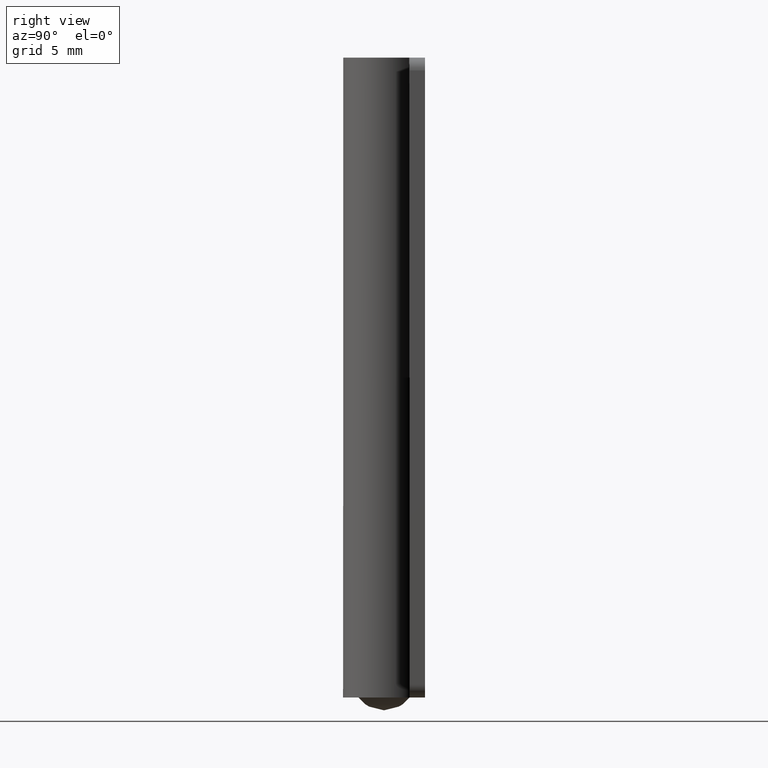
[diagram: clean part render]
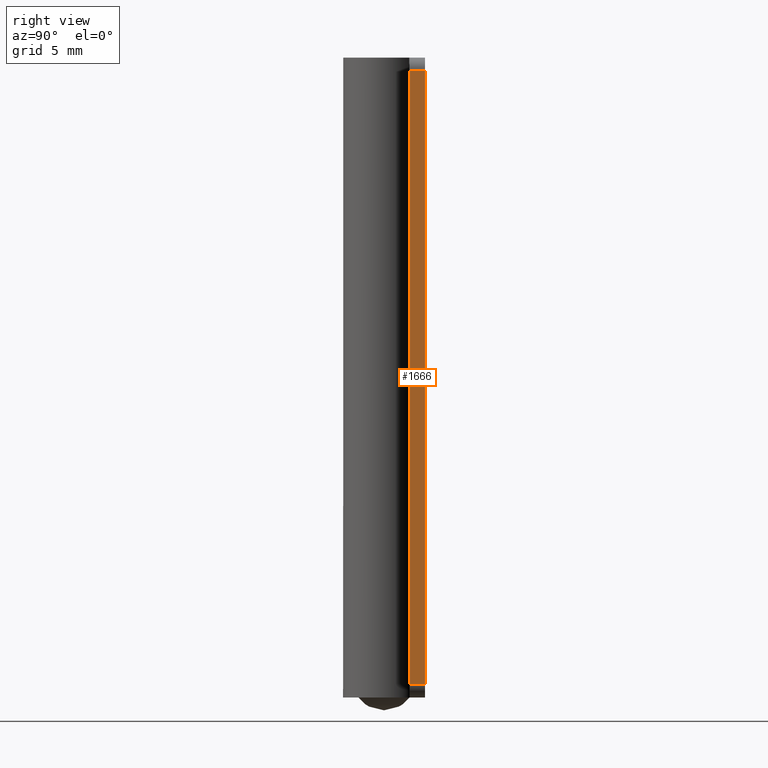
[diagram: same view with one face highlighted and labeled with its STEP entity id]
A machine part, right view. The second image highlights one B-rep face of the part: STEP entity #1666.
In plain terms, the highlighted face is a freeform B-spline surface patch.
Its self-contained STEP definition (entity closure, byte-faithful):
#1449=CARTESIAN_POINT('',(12.500000000000000,2.0,49.0));
#1450=VERTEX_POINT('',#1449);
#1466=CARTESIAN_POINT('',(12.500000000000000,3.200000999999955,49.0));
#1467=VERTEX_POINT('',#1466);
#1468=CARTESIAN_POINT('',(12.500000000000000,3.200000999999955,49.0));
#1469=CARTESIAN_POINT('',(12.500000000000000,2.0,49.0));
#1470=QUASI_UNIFORM_CURVE('',1,(#1468,#1469),.UNSPECIFIED.,.F.,.U.);
#1471=EDGE_CURVE('',#1467,#1450,#1470,.T.);
#1512=CARTESIAN_POINT('',(12.500000000000000,2.0,1.0));
#1513=VERTEX_POINT('',#1512);
#1534=CARTESIAN_POINT('',(12.500000000000000,3.200000999999955,1.0));
#1535=VERTEX_POINT('',#1534);
#1549=CARTESIAN_POINT('',(12.500000000000000,3.200000999999955,1.0));
#1550=CARTESIAN_POINT('',(12.500000000000000,2.0,1.0));
#1551=QUASI_UNIFORM_CURVE('',1,(#1549,#1550),.UNSPECIFIED.,.F.,.U.);
#1552=EDGE_CURVE('',#1535,#1513,#1551,.T.);
#1647=CARTESIAN_POINT('',(12.500000000000000,1.940059952375837,-1.397599906966685));
#1648=CARTESIAN_POINT('',(12.500000000000000,1.940059952375837,51.397601194427011));
#1649=CARTESIAN_POINT('',(12.500000000000000,3.259941079810654,-1.397599906966685));
#1650=CARTESIAN_POINT('',(12.500000000000000,3.259941079810654,51.397601194427011));
#1651=B_SPLINE_SURFACE_WITH_KNOTS('',1,1,((#1647,#1649),(#1648,#1650)),.UNSPECIFIED.,.F.,.F.,.U.,(2,2),(2,2),(0.0,52.795201101393687),(0.041708334948495,0.958291687403247),.UNSPECIFIED.);
#1652=CARTESIAN_POINT('',(12.500000000000000,3.200000999999955,1.0));
#1653=CARTESIAN_POINT('',(12.500000000000000,3.200000999999955,49.0));
#1654=QUASI_UNIFORM_CURVE('',1,(#1652,#1653),.UNSPECIFIED.,.F.,.U.);
#1655=EDGE_CURVE('',#1535,#1467,#1654,.T.);
#1656=ORIENTED_EDGE('',*,*,#1655,.T.);
#1657=ORIENTED_EDGE('',*,*,#1471,.T.);
#1658=CARTESIAN_POINT('',(12.500000000000000,2.0,1.0));
#1659=CARTESIAN_POINT('',(12.500000000000000,2.0,49.0));
#1660=QUASI_UNIFORM_CURVE('',1,(#1658,#1659),.UNSPECIFIED.,.F.,.U.);
#1661=EDGE_CURVE('',#1513,#1450,#1660,.T.);
#1662=ORIENTED_EDGE('',*,*,#1661,.F.);
#1663=ORIENTED_EDGE('',*,*,#1552,.F.);
#1664=EDGE_LOOP('',(#1656,#1657,#1662,#1663));
#1665=FACE_OUTER_BOUND('',#1664,.T.);
#1666=ADVANCED_FACE('',(#1665),#1651,.F.);